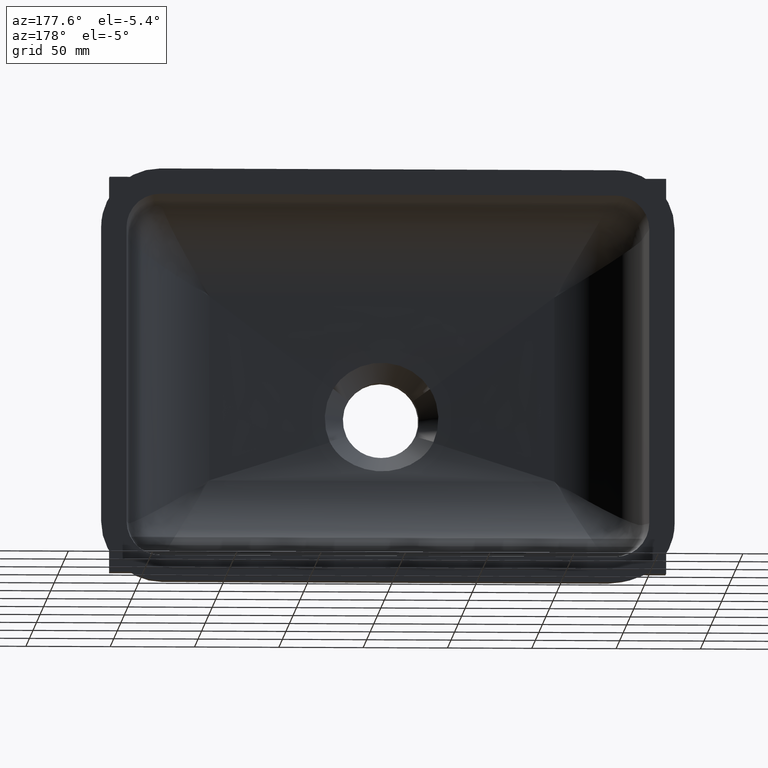
[diagram: clean part render]
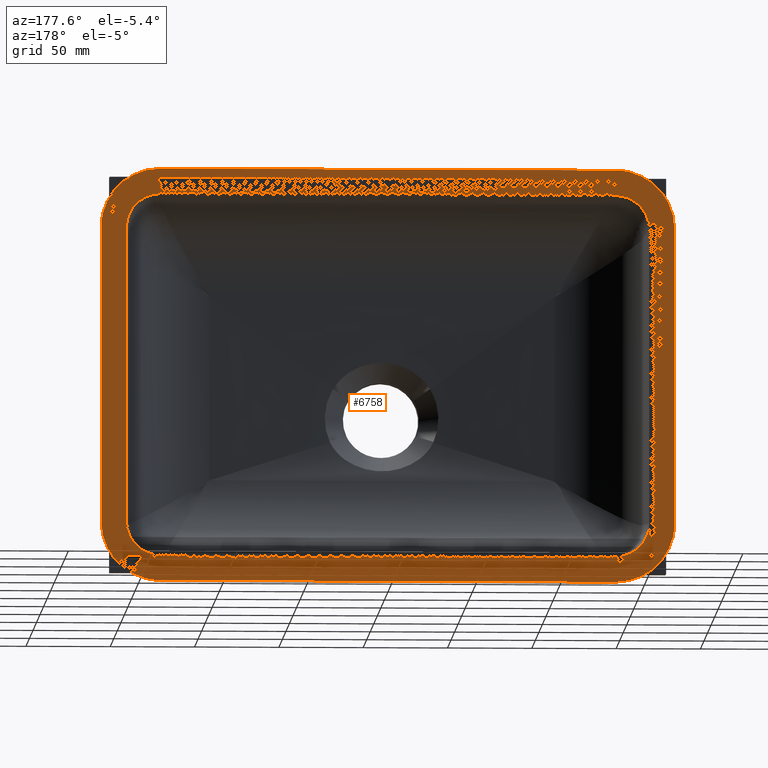
[diagram: same view with one face highlighted and labeled with its STEP entity id]
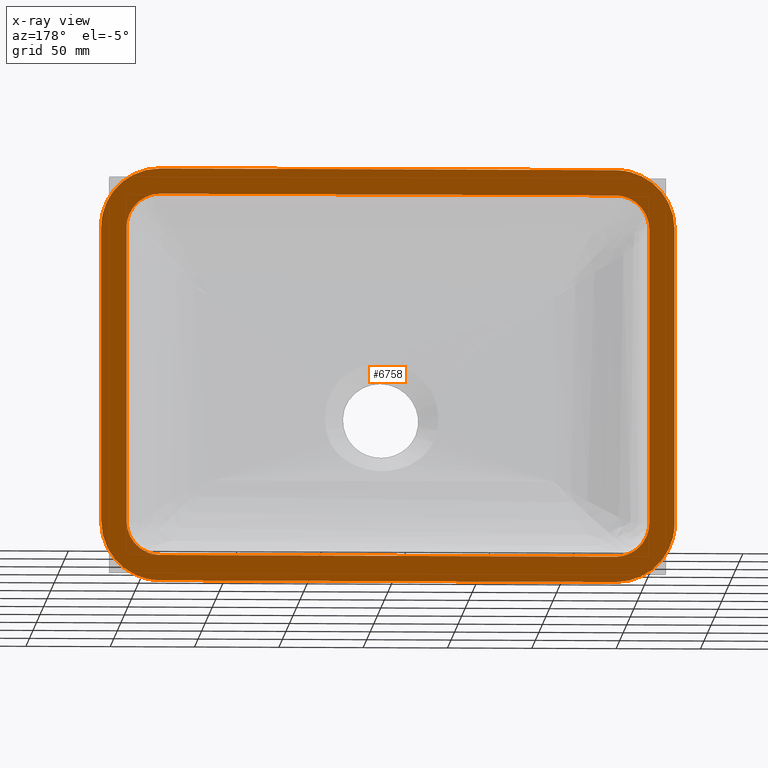
[diagram: x-ray of the same camera — body ghosted, the highlighted face saturated]
A machine part, auxiliary view. The second image highlights one B-rep face of the part: STEP entity #6758.
The next image is the same camera in x-ray: the body ghosted, the highlighted face saturated — about 0% of this face is hidden behind the body in this view.
In plain terms, the highlighted planar face has unit normal (0, -1, 0).
Its self-contained STEP definition (entity closure, byte-faithful):
#3 = CARTESIAN_POINT ( 'NONE',  ( 155.5946067761343600, 0.0000000000000000000, 122.5364619038969200 ) ) ;
#30 = ORIENTED_EDGE ( 'NONE', *, *, #1792, .T. ) ;
#35 = EDGE_LOOP ( 'NONE', ( #2057, #7109, #271, #2383, #1861, #30, #2318, #6372 ) ) ;
#144 = CARTESIAN_POINT ( 'NONE',  ( 146.7475113555642300, 0.0000000000000000000, 107.4999999999999700 ) ) ;
#147 =( BOUNDED_CURVE ( )  B_SPLINE_CURVE ( 3, ( #6047, #6552, #6600, #4348 ),
 .UNSPECIFIED., .F., .F. ) 
 B_SPLINE_CURVE_WITH_KNOTS ( ( 4, 4 ),
 ( 2.358616458759531300, 3.924568848420042100 ),
 .UNSPECIFIED. ) 
 CURVE ( )  GEOMETRIC_REPRESENTATION_ITEM ( )  RATIONAL_B_SPLINE_CURVE ( ( 1.000000000000000000, 0.8058781973272437500, 0.8058781973272437500, 1.000000000000000000 ) ) 
 REPRESENTATION_ITEM ( '' )  );
#163 = CARTESIAN_POINT ( 'NONE',  ( 135.0484979832755500, 2.242871439001122500E-015, -107.4999999999999900 ) ) ;
#204 = EDGE_CURVE ( 'NONE', #891, #2222, #7158, .T. ) ;
#212 = CARTESIAN_POINT ( 'NONE',  ( 155.0000000000000300, 0.0000000000000000000, -99.24751135556414300 ) ) ;
#214 = VERTEX_POINT ( 'NONE', #3095 ) ;
#230 =( BOUNDED_CURVE ( )  B_SPLINE_CURVE ( 3, ( #4361, #5396, #4009, #2262 ),
 .UNSPECIFIED., .F., .F. ) 
 B_SPLINE_CURVE_WITH_KNOTS ( ( 4, 4 ),
 ( 2.358616458759535700, 3.924568848420048300 ),
 .UNSPECIFIED. ) 
 CURVE ( )  GEOMETRIC_REPRESENTATION_ITEM ( )  RATIONAL_B_SPLINE_CURVE ( ( 1.000000000000000000, 0.8058781973272433100, 0.8058781973272433100, 1.000000000000000000 ) ) 
 REPRESENTATION_ITEM ( '' )  );
#271 = ORIENTED_EDGE ( 'NONE', *, *, #1401, .T. ) ;
#299 = FACE_OUTER_BOUND ( 'NONE', #35, .T. ) ;
#363 = VERTEX_POINT ( 'NONE', #4195 ) ;
#415 = CARTESIAN_POINT ( 'NONE',  ( -135.0484979832756100, 1.542799026701552300E-016, -107.5000000000000100 ) ) ;
#424 = CARTESIAN_POINT ( 'NONE',  ( 170.0364619038969900, 0.0000000000000000000, -107.4999999999999400 ) ) ;
#438 = VERTEX_POINT ( 'NONE', #1372 ) ;
#454 = CARTESIAN_POINT ( 'NONE',  ( 170.0364619038969600, 0.0000000000000000000, -87.62133337462918800 ) ) ;
#470 = EDGE_CURVE ( 'NONE', #1704, #6287, #2626, .T. ) ;
#601 = VECTOR ( 'NONE', #3193, 1000.000000000000000 ) ;
#636 =( BOUNDED_CURVE ( )  B_SPLINE_CURVE ( 3, ( #4115, #1346, #766, #6318 ),
 .UNSPECIFIED., .F., .F. ) 
 B_SPLINE_CURVE_WITH_KNOTS ( ( 4, 4 ),
 ( 2.358616458759533100, 3.924568848420043800 ),
 .UNSPECIFIED. ) 
 CURVE ( )  GEOMETRIC_REPRESENTATION_ITEM ( )  RATIONAL_B_SPLINE_CURVE ( ( 1.000000000000000000, 0.8058781973272437500, 0.8058781973272437500, 1.000000000000000000 ) ) 
 REPRESENTATION_ITEM ( '' )  );
#642 = VECTOR ( 'NONE', #5081, 1000.000000000000000 ) ;
#646 =( BOUNDED_CURVE ( )  B_SPLINE_CURVE ( 3, ( #415, #2629, #3208, #7096 ),
 .UNSPECIFIED., .F., .F. ) 
 B_SPLINE_CURVE_WITH_KNOTS ( ( 4, 4 ),
 ( 2.358616458759535300, 3.924568848420046900 ),
 .UNSPECIFIED. ) 
 CURVE ( )  GEOMETRIC_REPRESENTATION_ITEM ( )  RATIONAL_B_SPLINE_CURVE ( ( 1.000000000000000000, 0.8058781973272435300, 0.8058781973272435300, 1.000000000000000000 ) ) 
 REPRESENTATION_ITEM ( '' )  );
#655 = VERTEX_POINT ( 'NONE', #3588 ) ;
#716 = DIRECTION ( 'NONE',  ( -1.000000000000000000, -0.0000000000000000000, -0.0000000000000000000 ) ) ;
#766 = CARTESIAN_POINT ( 'NONE',  ( 155.5946067761343300, 0.0000000000000000000, -122.5364619038968900 ) ) ;
#891 = VERTEX_POINT ( 'NONE', #5083 ) ;
#899 = CARTESIAN_POINT ( 'NONE',  ( 170.0364619038969900, 0.0000000000000000000, 87.62133337462918800 ) ) ;
#971 = EDGE_CURVE ( 'NONE', #363, #5482, #4193, .T. ) ;
#1239 =( BOUNDED_CURVE ( )  B_SPLINE_CURVE ( 3, ( #4749, #3, #3784, #899 ),
 .UNSPECIFIED., .F., .F. ) 
 B_SPLINE_CURVE_WITH_KNOTS ( ( 4, 4 ),
 ( 2.358616458759550400, 3.924568848420061600 ),
 .UNSPECIFIED. ) 
 CURVE ( )  GEOMETRIC_REPRESENTATION_ITEM ( )  RATIONAL_B_SPLINE_CURVE ( ( 1.000000000000000000, 0.8058781973272435300, 0.8058781973272435300, 1.000000000000000000 ) ) 
 REPRESENTATION_ITEM ( '' )  );
#1291 = CARTESIAN_POINT ( 'NONE',  ( -155.5946067761343300, 0.0000000000000000000, 122.5364619038969200 ) ) ;
#1328 = CARTESIAN_POINT ( 'NONE',  ( 155.0000000000000300, 0.0000000000000000000, 107.4999999999999700 ) ) ;
#1346 = CARTESIAN_POINT ( 'NONE',  ( 170.0364619038969600, 0.0000000000000000000, -108.0946067761342400 ) ) ;
#1372 = CARTESIAN_POINT ( 'NONE',  ( -135.0484979832755500, 0.0000000000000000000, 107.4999999999999900 ) ) ;
#1401 = EDGE_CURVE ( 'NONE', #3805, #1694, #3773, .T. ) ;
#1423 = EDGE_CURVE ( 'NONE', #3256, #1438, #4704, .T. ) ;
#1428 = PLANE ( 'NONE',  #5685 ) ;
#1438 = VERTEX_POINT ( 'NONE', #454 ) ;
#1522 = DIRECTION ( 'NONE',  ( -1.000000000000000000, 0.0000000000000000000, -2.238352872228137700E-016 ) ) ;
#1641 = DIRECTION ( 'NONE',  ( 0.0000000000000000000, 0.0000000000000000000, -1.000000000000000000 ) ) ;
#1694 = VERTEX_POINT ( 'NONE', #6109 ) ;
#1704 = VERTEX_POINT ( 'NONE', #5644 ) ;
#1792 = EDGE_CURVE ( 'NONE', #6287, #363, #4033, .T. ) ;
#1861 = ORIENTED_EDGE ( 'NONE', *, *, #470, .T. ) ;
#1991 = LINE ( 'NONE', #1328, #4532 ) ;
#2019 = CARTESIAN_POINT ( 'NONE',  ( 135.1213333746292700, 0.0000000000000000000, 122.5364619038969400 ) ) ;
#2057 = ORIENTED_EDGE ( 'NONE', *, *, #1423, .T. ) ;
#2084 = EDGE_CURVE ( 'NONE', #2222, #214, #3514, .T. ) ;
#2222 = VERTEX_POINT ( 'NONE', #6861 ) ;
#2262 = CARTESIAN_POINT ( 'NONE',  ( -170.0364619038969900, 0.0000000000000000000, -87.62133337462921600 ) ) ;
#2318 = ORIENTED_EDGE ( 'NONE', *, *, #971, .T. ) ;
#2320 = VERTEX_POINT ( 'NONE', #6822 ) ;
#2379 = VERTEX_POINT ( 'NONE', #5713 ) ;
#2383 = ORIENTED_EDGE ( 'NONE', *, *, #6474, .T. ) ;
#2472 = CARTESIAN_POINT ( 'NONE',  ( 170.0364619038969900, 0.0000000000000000000, 87.62133337462918800 ) ) ;
#2626 = LINE ( 'NONE', #5316, #601 ) ;
#2629 = CARTESIAN_POINT ( 'NONE',  ( -146.7475113555642300, 0.0000000000000000000, -107.5000000000000400 ) ) ;
#2788 = DIRECTION ( 'NONE',  ( 1.000000000000000000, 0.0000000000000000000, -4.476705744456275500E-017 ) ) ;
#3023 = CARTESIAN_POINT ( 'NONE',  ( 155.0000000000000300, 0.0000000000000000000, 99.24751135556415700 ) ) ;
#3034 = VECTOR ( 'NONE', #7203, 1000.000000000000000 ) ;
#3095 = CARTESIAN_POINT ( 'NONE',  ( -135.0484979832756100, 1.542799026701552300E-016, -107.5000000000000100 ) ) ;
#3193 = DIRECTION ( 'NONE',  ( 0.0000000000000000000, 0.0000000000000000000, 1.000000000000000000 ) ) ;
#3208 = CARTESIAN_POINT ( 'NONE',  ( -155.0000000000000300, 0.0000000000000000000, -99.24751135556422800 ) ) ;
#3210 = CARTESIAN_POINT ( 'NONE',  ( -155.0000000000000300, 0.0000000000000000000, 87.54849798327555300 ) ) ;
#3249 =( BOUNDED_CURVE ( )  B_SPLINE_CURVE ( 3, ( #5635, #144, #3023, #5299 ),
 .UNSPECIFIED., .F., .F. ) 
 B_SPLINE_CURVE_WITH_KNOTS ( ( 4, 4 ),
 ( 2.358616458759549900, 3.924568848420061600 ),
 .UNSPECIFIED. ) 
 CURVE ( )  GEOMETRIC_REPRESENTATION_ITEM ( )  RATIONAL_B_SPLINE_CURVE ( ( 1.000000000000000000, 0.8058781973272435300, 0.8058781973272435300, 1.000000000000000000 ) ) 
 REPRESENTATION_ITEM ( '' )  );
#3256 = VERTEX_POINT ( 'NONE', #2472 ) ;
#3288 = EDGE_CURVE ( 'NONE', #2320, #655, #3249, .T. ) ;
#3330 = ORIENTED_EDGE ( 'NONE', *, *, #3586, .F. ) ;
#3460 = ORIENTED_EDGE ( 'NONE', *, *, #204, .F. ) ;
#3514 = LINE ( 'NONE', #6188, #6996 ) ;
#3586 = EDGE_CURVE ( 'NONE', #2379, #5882, #4596, .T. ) ;
#3588 = CARTESIAN_POINT ( 'NONE',  ( 155.0000000000000300, 0.0000000000000000000, 87.54849798327555300 ) ) ;
#3712 = CARTESIAN_POINT ( 'NONE',  ( -170.0364619038969600, 0.0000000000000000000, 87.62133337462921600 ) ) ;
#3773 = LINE ( 'NONE', #6514, #6728 ) ;
#3784 = CARTESIAN_POINT ( 'NONE',  ( 170.0364619038969900, 0.0000000000000000000, 108.0946067761343000 ) ) ;
#3805 = VERTEX_POINT ( 'NONE', #5376 ) ;
#3858 = EDGE_LOOP ( 'NONE', ( #6648, #7069, #4221, #7217, #3330, #5516, #6712, #3460 ) ) ;
#3871 = VECTOR ( 'NONE', #1641, 1000.000000000000000 ) ;
#3895 = DIRECTION ( 'NONE',  ( 0.0000000000000000000, -0.0000000000000000000, -1.000000000000000000 ) ) ;
#3977 = EDGE_CURVE ( 'NONE', #214, #2379, #646, .T. ) ;
#4009 = CARTESIAN_POINT ( 'NONE',  ( -170.0364619038970200, 0.0000000000000000000, -108.0946067761343000 ) ) ;
#4014 = CARTESIAN_POINT ( 'NONE',  ( 155.0000000000000300, 0.0000000000000000000, 122.5364619038969400 ) ) ;
#4033 =( BOUNDED_CURVE ( )  B_SPLINE_CURVE ( 3, ( #6696, #4858, #1291, #5150 ),
 .UNSPECIFIED., .F., .F. ) 
 B_SPLINE_CURVE_WITH_KNOTS ( ( 4, 4 ),
 ( 2.358616458759531700, 3.924568848420042900 ),
 .UNSPECIFIED. ) 
 CURVE ( )  GEOMETRIC_REPRESENTATION_ITEM ( )  RATIONAL_B_SPLINE_CURVE ( ( 1.000000000000000000, 0.8058781973272435300, 0.8058781973272435300, 1.000000000000000000 ) ) 
 REPRESENTATION_ITEM ( '' )  );
#4115 = CARTESIAN_POINT ( 'NONE',  ( 170.0364619038969600, 0.0000000000000000000, -87.62133337462918800 ) ) ;
#4132 = CARTESIAN_POINT ( 'NONE',  ( 0.0000000000000000000, 0.0000000000000000000, 0.0000000000000000000 ) ) ;
#4193 = LINE ( 'NONE', #4014, #7070 ) ;
#4195 = CARTESIAN_POINT ( 'NONE',  ( -135.1213333746292200, 0.0000000000000000000, 122.5364619038969500 ) ) ;
#4221 = ORIENTED_EDGE ( 'NONE', *, *, #5818, .F. ) ;
#4348 = CARTESIAN_POINT ( 'NONE',  ( -135.0484979832755500, 0.0000000000000000000, 107.4999999999999900 ) ) ;
#4361 = CARTESIAN_POINT ( 'NONE',  ( -135.1213333746292700, 0.0000000000000000000, -122.5364619038969900 ) ) ;
#4454 = EDGE_CURVE ( 'NONE', #5482, #3256, #1239, .T. ) ;
#4532 = VECTOR ( 'NONE', #6524, 1000.000000000000000 ) ;
#4596 = LINE ( 'NONE', #5187, #642 ) ;
#4613 = CARTESIAN_POINT ( 'NONE',  ( 155.0000000000000300, 0.0000000000000000000, -87.54849798327553900 ) ) ;
#4704 = LINE ( 'NONE', #424, #3871 ) ;
#4749 = CARTESIAN_POINT ( 'NONE',  ( 135.1213333746292700, 0.0000000000000000000, 122.5364619038969400 ) ) ;
#4758 = EDGE_CURVE ( 'NONE', #5882, #438, #147, .T. ) ;
#4858 = CARTESIAN_POINT ( 'NONE',  ( -170.0364619038969400, 0.0000000000000000000, 108.0946067761343000 ) ) ;
#5081 = DIRECTION ( 'NONE',  ( -0.0000000000000000000, -0.0000000000000000000, 1.000000000000000000 ) ) ;
#5083 = CARTESIAN_POINT ( 'NONE',  ( 155.0000000000000300, 0.0000000000000000000, -87.54849798327553900 ) ) ;
#5144 = EDGE_CURVE ( 'NONE', #1438, #3805, #636, .T. ) ;
#5150 = CARTESIAN_POINT ( 'NONE',  ( -135.1213333746292200, 0.0000000000000000000, 122.5364619038969500 ) ) ;
#5187 = CARTESIAN_POINT ( 'NONE',  ( -155.0000000000000300, 0.0000000000000000000, 107.4999999999999900 ) ) ;
#5299 = CARTESIAN_POINT ( 'NONE',  ( 155.0000000000000300, 0.0000000000000000000, 87.54849798327555300 ) ) ;
#5316 = CARTESIAN_POINT ( 'NONE',  ( -170.0364619038969900, 0.0000000000000000000, 107.4999999999999900 ) ) ;
#5376 = CARTESIAN_POINT ( 'NONE',  ( 135.1213333746292400, 0.0000000000000000000, -122.5364619038969200 ) ) ;
#5396 = CARTESIAN_POINT ( 'NONE',  ( -155.5946067761343800, 0.0000000000000000000, -122.5364619038969800 ) ) ;
#5482 = VERTEX_POINT ( 'NONE', #2019 ) ;
#5516 = ORIENTED_EDGE ( 'NONE', *, *, #3977, .F. ) ;
#5635 = CARTESIAN_POINT ( 'NONE',  ( 135.0484979832756100, 0.0000000000000000000, 107.4999999999999700 ) ) ;
#5644 = CARTESIAN_POINT ( 'NONE',  ( -170.0364619038969900, 0.0000000000000000000, -87.62133337462921600 ) ) ;
#5685 = AXIS2_PLACEMENT_3D ( 'NONE', #4132, #6473, #3895 ) ;
#5713 = CARTESIAN_POINT ( 'NONE',  ( -155.0000000000000300, 0.0000000000000000000, -87.54849798327561000 ) ) ;
#5777 = FACE_BOUND ( 'NONE', #3858, .T. ) ;
#5818 = EDGE_CURVE ( 'NONE', #438, #2320, #6066, .T. ) ;
#5882 = VERTEX_POINT ( 'NONE', #3210 ) ;
#6047 = CARTESIAN_POINT ( 'NONE',  ( -155.0000000000000300, 0.0000000000000000000, 87.54849798327555300 ) ) ;
#6066 = LINE ( 'NONE', #6076, #3034 ) ;
#6076 = CARTESIAN_POINT ( 'NONE',  ( -155.0000000000000300, 0.0000000000000000000, 107.4999999999999900 ) ) ;
#6109 = CARTESIAN_POINT ( 'NONE',  ( -135.1213333746292700, 0.0000000000000000000, -122.5364619038969900 ) ) ;
#6188 = CARTESIAN_POINT ( 'NONE',  ( -155.0000000000000300, 0.0000000000000000000, -107.5000000000000100 ) ) ;
#6287 = VERTEX_POINT ( 'NONE', #3712 ) ;
#6318 = CARTESIAN_POINT ( 'NONE',  ( 135.1213333746292400, 0.0000000000000000000, -122.5364619038969200 ) ) ;
#6372 = ORIENTED_EDGE ( 'NONE', *, *, #4454, .T. ) ;
#6391 = EDGE_CURVE ( 'NONE', #655, #891, #1991, .T. ) ;
#6473 = DIRECTION ( 'NONE',  ( 0.0000000000000000000, -1.000000000000000000, 0.0000000000000000000 ) ) ;
#6474 = EDGE_CURVE ( 'NONE', #1694, #1704, #230, .T. ) ;
#6514 = CARTESIAN_POINT ( 'NONE',  ( -155.0000000000000300, 0.0000000000000000000, -122.5364619038969600 ) ) ;
#6524 = DIRECTION ( 'NONE',  ( 0.0000000000000000000, 0.0000000000000000000, -1.000000000000000000 ) ) ;
#6552 = CARTESIAN_POINT ( 'NONE',  ( -154.9999999999999700, 0.0000000000000000000, 99.24751135556418500 ) ) ;
#6600 = CARTESIAN_POINT ( 'NONE',  ( -146.7475113555642000, 0.0000000000000000000, 107.4999999999999900 ) ) ;
#6648 = ORIENTED_EDGE ( 'NONE', *, *, #6391, .F. ) ;
#6696 = CARTESIAN_POINT ( 'NONE',  ( -170.0364619038969600, 0.0000000000000000000, 87.62133337462921600 ) ) ;
#6712 = ORIENTED_EDGE ( 'NONE', *, *, #2084, .F. ) ;
#6728 = VECTOR ( 'NONE', #1522, 1000.000000000000000 ) ;
#6758 = ADVANCED_FACE ( 'NONE', ( #299, #5777 ), #1428, .F. ) ;
#6822 = CARTESIAN_POINT ( 'NONE',  ( 135.0484979832756100, 0.0000000000000000000, 107.4999999999999700 ) ) ;
#6842 = CARTESIAN_POINT ( 'NONE',  ( 146.7475113555642300, 0.0000000000000000000, -107.4999999999999700 ) ) ;
#6861 = CARTESIAN_POINT ( 'NONE',  ( 135.0484979832755500, 2.242871439001122500E-015, -107.4999999999999900 ) ) ;
#6996 = VECTOR ( 'NONE', #716, 1000.000000000000000 ) ;
#7069 = ORIENTED_EDGE ( 'NONE', *, *, #3288, .F. ) ;
#7070 = VECTOR ( 'NONE', #2788, 1000.000000000000000 ) ;
#7096 = CARTESIAN_POINT ( 'NONE',  ( -155.0000000000000300, 0.0000000000000000000, -87.54849798327561000 ) ) ;
#7109 = ORIENTED_EDGE ( 'NONE', *, *, #5144, .T. ) ;
#7158 =( BOUNDED_CURVE ( )  B_SPLINE_CURVE ( 3, ( #4613, #212, #6842, #163 ),
 .UNSPECIFIED., .F., .F. ) 
 B_SPLINE_CURVE_WITH_KNOTS ( ( 4, 4 ),
 ( 2.358616458759532600, 3.924568848420044700 ),
 .UNSPECIFIED. ) 
 CURVE ( )  GEOMETRIC_REPRESENTATION_ITEM ( )  RATIONAL_B_SPLINE_CURVE ( ( 1.000000000000000000, 0.8058781973272434200, 0.8058781973272434200, 1.000000000000000000 ) ) 
 REPRESENTATION_ITEM ( '' )  );
#7203 = DIRECTION ( 'NONE',  ( 1.000000000000000000, 0.0000000000000000000, -4.476705744456275500E-017 ) ) ;
#7217 = ORIENTED_EDGE ( 'NONE', *, *, #4758, .F. ) ;